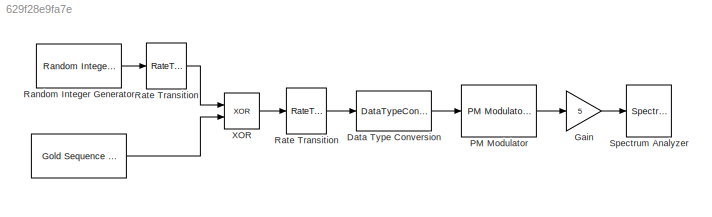
MODEL slx_629f28e9fa7e
KIND model
BLOCK [Reference]    REF=commseqgen2/Gold Sequence
Generator
  Ports = [0, 1]
  SourceBlock = commseqgen2/Gold Sequence\nGenerator
  SourceType = Gold Sequence Generator
  frameBased = off
  genPoly1 = [1 0 0 1 0 1]
  genPoly2 = [1 1 1 1 0 1]
  index = 0
  iniState1 = [1 1 1 0 1]
  iniState2 = [1 0 0 0 1]
  maxOutSize = [10 1]
  maxOutSizeMode = Dialog parameter
  outDataType = double
  outVarSiz = off
  reset = off
  sampPerFrame = 1
  shift = 0
  ts = 5e-5
BLOCK [DataTypeConversion] Data Type Conversion
  OutDataTypeStr = double
  RndMeth = Floor
  SaturateOnIntegerOverflow = off
BLOCK [Gain] Gain
  Gain = 5
  OutDataTypeStr = Inherit: Inherit via internal rule
  ParamDataTypeStr = Inherit: Inherit via internal rule
  SaturateOnIntegerOverflow = off
BLOCK [Reference] PM Modulator  REF=commanapbnd3/PM
Modulator
Passband
  Fc = 100000
  Kc = pi
  Ph = pi
  Ports = [1, 1]
  SourceBlock = commanapbnd3/PM\nModulator\nPassband
  SourceType = PM Modulator Passband
BLOCK [Reference] Random Integer Generator  REF=commrandsrc2/Random Integer
Generator
  Ports = [0, 1]
  SourceBlock = commrandsrc2/Random Integer\nGenerator
  SourceType = Random Integer Generator
  Ts = 1e-3
  frameBased = off
  mul = 2
  orient = on
  outDataType = double
  sampPerFrame = 50
  seed = randseed
BLOCK [RateTransition] Rate Transition
  OutPortSampleTime = 5e-5
BLOCK [RateTransition] Rate Transition 
  OutPortSampleTime = 2e-7
BLOCK [SpectrumAnalyzer] Spectrum Analyzer
  Ports = [1]
  ScopeSpecificationString = spbscopes.SpectrumAnalyzerBlockCfg('CurrentConfiguration', extmgr.ConfigurationSet(extmgr.Configuration('Core','General UI',true,'FigureColor',[0.313725490196078 0.313725490196078 0.313725490196078]),extmgr.Configuration('Core','Source UI',true),extmgr.Configuration('Sources','WiredSimulink',true),extmgr.Configuration('Sources','Simulink',false),extmgr.Configuration('Sources','File',false),extmgr....<+7017ch>
BLOCK [Logic] XOR
  AllPortsSameDT = off
  IconShape = distinctive
  Operator = XOR
  OutDataTypeStr = boolean
  Ports = [2, 1]
LINE  :1 -> XOR:2
LINE Data Type Conversion:1 -> PM Modulator:1
LINE Gain:1 -> Spectrum Analyzer:1
LINE PM Modulator:1 -> Gain:1
LINE Random Integer Generator:1 -> Rate Transition:1
LINE Rate Transition :1 -> Data Type Conversion:1
LINE Rate Transition:1 -> XOR:1
LINE XOR:1 -> Rate Transition :1
